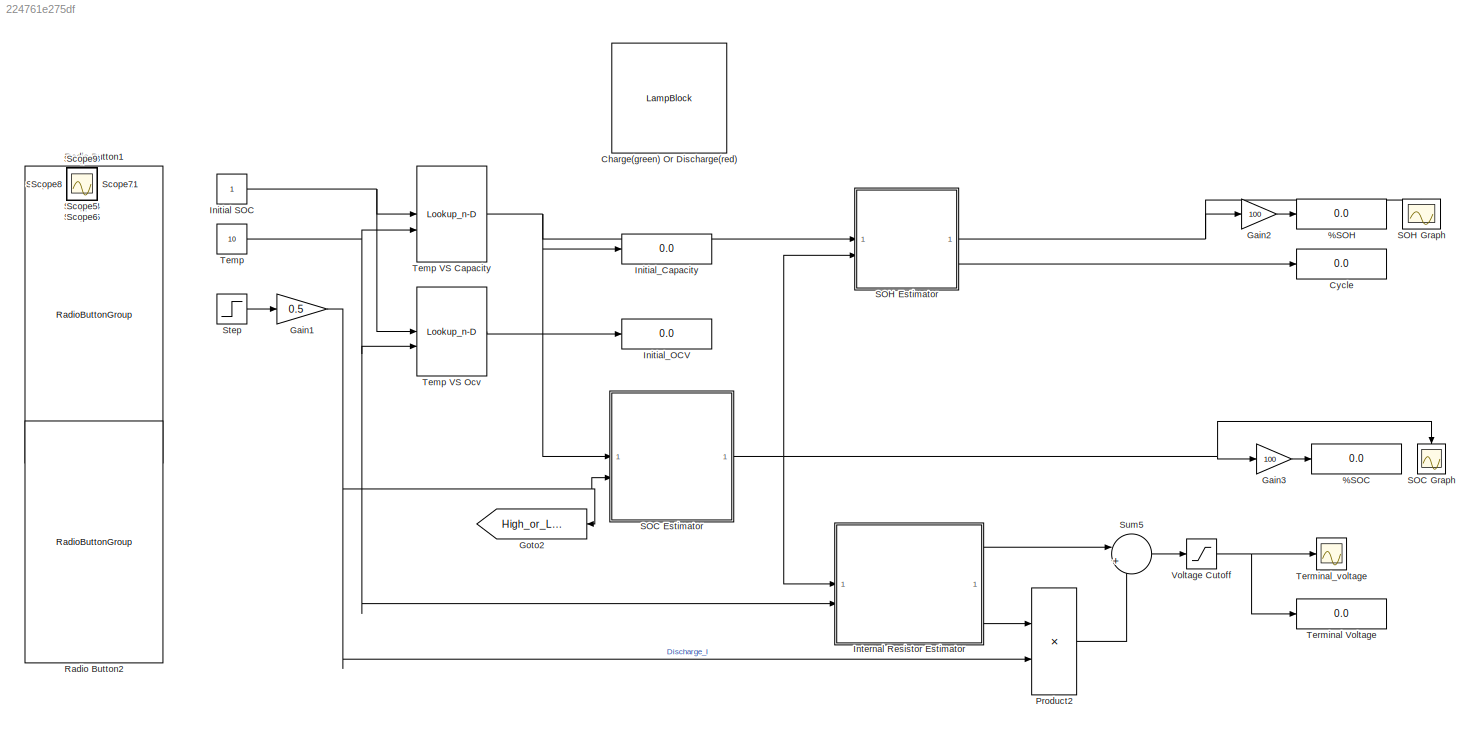
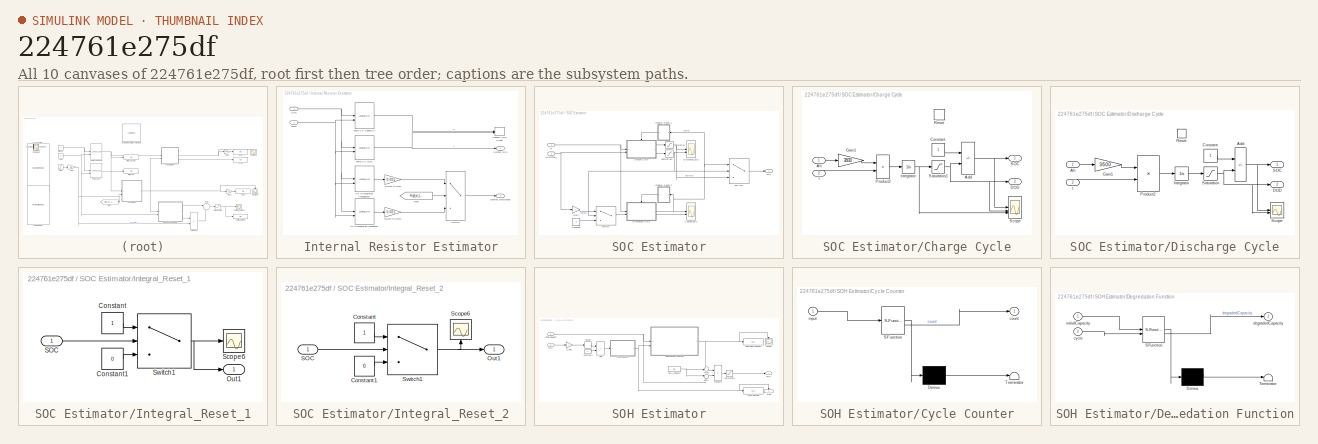
[diagram: thumbnail index - all 10 canvases of the model, root first then tree order]
MODEL slx_224761e275df
KIND model
CONFIG AbsTol = auto
CONFIG EnableMultiTasking = off
CONFIG FixedStep = 1
CONFIG MaxStep = auto
CONFIG MinStep = auto
CONFIG RelTol = 1e-5
CONFIG SampleTimeConstraint = Unconstrained
CONFIG SolverName = VariableStepAuto
CONFIG StartTime = 0.0
CONFIG StopTime = inf
BLOCK [Display] %SOC
  Decimation = 1
BLOCK [Display] %SOH
  Decimation = 1
BLOCK [LampBlock] Charge(green) Or Discharge(red)
  LabelPosition = Hide
BLOCK [Display] Cycle
  Decimation = 1
BLOCK [Gain] Gain1
  Gain = 0.5
BLOCK [Gain] Gain2
  Gain = 100
BLOCK [Gain] Gain3
  Gain = 100
BLOCK [Goto] Goto2
  GotoTag = High_or_Low_current
  NameLocation = top
  TagVisibility = global
BLOCK [Constant] Initial SOC
  SampleTime = 1
BLOCK [Display] Initial_Capacity
  Decimation = 1
BLOCK [Display] Initial_OCV
  Decimation = 1
BLOCK [SubSystem] Internal Resistor Estimator
BLOCK [Record] Internal Resistor Estimator/Capacity_Ocv Graph
  CompatibilityTag = XY
  FileSettingsInternal = {"entries":[{"content":{"excelSettings":{"content":{},"type":"Streamout.ExcelSettings"}},"type":"Streamout.FileSettingStorage","uuid":""}],"packageUris":["http:\/\/schema.mathworks.com\/mf0\/streamout_blocks\/R2020a"],"version":"1.0"}
  Layout = [1 1]
  SignalsInternal = {"entries":[{"content":{"signals":[{"content":{"blockPath":[],"dimensions":[1],"domain":"","lineColor":"#a2142f","plots":[1],"port":1,"signalID":7779,"signalName":"XY Graph:1"},"type":"RecordBlkView.Signal","uuid":""},{"content":{"blockPath":[],"dimensions":[1],"domain":"","lineColor":"#139fff","plots":[1],"port":2,"signalID":7782,"signalName":"XY Graph:2"},"type":"RecordBlkView.Signal","uuid":""}...<+146ch>
  VisualizationBindings = {"xyplotplugin":{"info":[{"series":[{"bindingParametersList":[{"parameter":"X-Axis","signalID":7779,"signalName":"XY Graph:1"},{"parameter":"Y-Axis","signalID":7782,"signalName":"XY Graph:2"}],"seriesID":9451}],"subplotID":1}]}}
BLOCK [Outport] Internal Resistor Estimator/Current_OCV
BLOCK [From] Internal Resistor Estimator/From
  GotoTag = High_or_Low_current
  TagVisibility = global
BLOCK [Lookup_n-D] Internal Resistor Estimator/HC-Discharging Impedance1
  BreakpointsForDimension1 = [0;0.05;0.1;0.2;0.3;0.4;0.5;0.6;0.7;0.8;0.9;1]
  BreakpointsForDimension2 = [-30;-20;-10;0;10;25;45;55]
  InputPortMap = u0,u1
  InternalRulePriority = Speed
  RndMeth = Simplest
  Table = [75.5 51.2 28.1 17.5 14.1 8.88 5.49 4.87;75.5 51.2 28.1 17.5 14.1 8.88 5.49 4.87;69.9 45.3 24.1 14.2 10.3 7.3 3.2 4.2;61.2 35.8 17.8 10 6.1 4.3 3.5 2.3;47.7 26.6 13.8 8.1 5.1 4 3 2;37.1 23.5 11.7 7.4 4.8 3.7 3 1.9;30.5 21.4 10.6 7.1 4.7 3.9 2.2 1.7;27.5 18.3 10 7 4.7 3.9 2.1 1.7;24.8 16.7 9.7 6.9 4.7 4 2.2 1.9;22.9 16.1 9.5 6.9 4.8 4 2.3 1.9;22.1 15.8 9.5 7 4.9 4.1 2.3 1.9;22.4 16.7 9.7 7.3 5.1 3....<+10ch>
BLOCK [Outport] Internal Resistor Estimator/Internal_Resistance
  Port = 2
BLOCK [Lookup_n-D] Internal Resistor Estimator/LC-Discharging Impedance
  BreakpointsForDimension1 = [0;0.05;0.1;0.15;0.2;0.25;0.3;0.35;0.4;0.45;0.5;0.55;0.6;0.65;0.7;0.75;0.8;0.85;0.9;0.95;1]
  BreakpointsForDimension2 = [-30;-20;-10;0;10;25;45]
  InputPortMap = u0,u1
  InternalRulePriority = Speed
  RndMeth = Simplest
  Table = [124.53 60.78 33.59 13.67 8.39 4.69 3.13;124.53 60.78 33.59 13.67 8.39 4.69 3.13;122.03 59.69 32.5 12.61 7.28 3.91 2.34;119.84 58.59 31.88 11.97 6.78 3.44 2.03;119.38 57.5 30.94 11.54 6.51 3.28 1.87;118.59 56.41 30.31 11.27 6.32 3.28 1.88;117.97 55.78 29.84 11.17 6.2 2.97 1.87;117.34 55.63 29.53 11.05 6.13 3.13 1.88;117.03 55.63 29.38 11.08 6.22 3.12 1.72;116.88 55.62 29.53 11.22 6.3 3.28 1.88;116...<+427ch>
BLOCK [Inport] Internal Resistor Estimator/SOC
BLOCK [Switch] Internal Resistor Estimator/Switch
  Criteria = u2 > Threshold
  InputSameDT = off
  SaturateOnIntegerOverflow = off
  Threshold = 32
BLOCK [Inport] Internal Resistor Estimator/Temp
  Port = 2
BLOCK [Lookup_n-D] Internal Resistor Estimator/Temp VS Capacity1
  BreakpointsForDimension1 = [0.05;0.1;0.2;0.3;0.4;0.5;0.6;0.7;0.8;0.9;1]
  BreakpointsForDimension2 = [-30;-20;-10;0;10;25;45;55]
  InputPortMap = u0,u1
  InternalRulePriority = Speed
  RndMeth = Simplest
  Table = [0.9696 1.142325 1.332525 1.44755 1.561325 1.666425 1.751575 1.7742;1.9392 2.28465 2.66505 2.8951 3.12265 3.33285 3.50315 3.5484;3.8784 4.5693 5.3301 5.7902 6.2453 6.6657 7.0063 7.0968;5.8176 6.85395 7.99515 8.6853 9.36795 9.99855 10.50945 10.6452;7.7568 9.1386 10.6602 11.5804 12.4906 13.3314 14.0126 14.1936;9.696 11.42325 13.32525 14.4755 15.61325 16.66425 17.51575 17.742;11.6352 13.7079 15.9903 ...<+303ch>
BLOCK [Lookup_n-D] Internal Resistor Estimator/Temp VS Ocv1
  BreakpointsForDimension1 = [0;0.05;0.1;0.2;0.3;0.4;0.5;0.6;0.7;0.8;0.9;1]
  BreakpointsForDimension2 = [-30;-20;-10;0;10;25;45;55]
  InputPortMap = u0,u1
  InternalRulePriority = Speed
  RndMeth = Simplest
  Table = [2.7 2.7 2.7 2.7 2.7 2.7 2.7 2.7;3.631 3.597 3.574 3.559 3.523 3.473 3.473 3.425;3.635 3.61 3.588 3.581 3.558 3.516 3.516 3.462;3.669 3.647 3.625 3.617 3.608 3.589 3.589 3.547;3.713 3.69 3.663 3.651 3.641 3.632 3.632 3.619;3.768 3.749 3.715 3.694 3.678 3.665 3.665 3.655;3.831 3.821 3.788 3.764 3.743 3.72 3.72 3.702;3.898 3.901 3.878 3.862 3.85 3.831 3.831 3.806;3.971 3.984 3.973 3.968 3.957 3.938 ...<+153ch>
BLOCK [Gain] Internal Resistor Estimator/mOhm to Ohm
  Gain = 0.001
BLOCK [Gain] Internal Resistor Estimator/mOhm to Ohm1
  Gain = 0.001
BLOCK [Product] Product2
BLOCK [RadioButtonGroup] Radio Button1
  ButtonGroupName = Temperature
  SelectedLabel = 10
BLOCK [RadioButtonGroup] Radio Button2
  ButtonGroupName = Current
  SelectedLabel = C/2
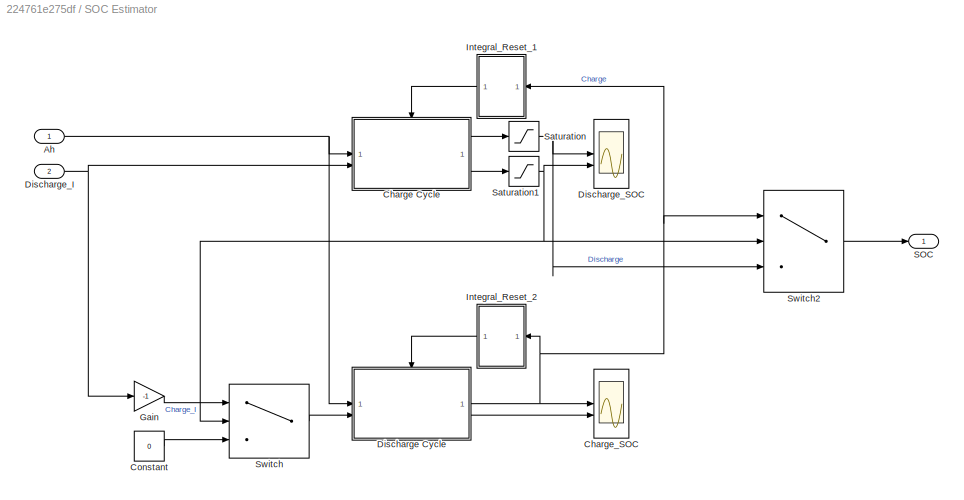
BLOCK [SubSystem] SOC Estimator
BLOCK [Inport] SOC Estimator/Ah
BLOCK [SubSystem] SOC Estimator/Charge Cycle
  TreatAsAtomicUnit = on
BLOCK [Sum] SOC Estimator/Charge Cycle/Add
  IconShape = rectangular
  Inputs = +-
BLOCK [Inport] SOC Estimator/Charge Cycle/Ah
  NameLocation = top
BLOCK [Constant] SOC Estimator/Charge Cycle/Constant
BLOCK [Outport] SOC Estimator/Charge Cycle/DOD
  Port = 2
BLOCK [Gain] SOC Estimator/Charge Cycle/Gain1
  Gain = 3600
BLOCK [Inport] SOC Estimator/Charge Cycle/I
  Port = 2
BLOCK [Integrator] SOC Estimator/Charge Cycle/Integrator
BLOCK [Product] SOC Estimator/Charge Cycle/Product2
  Inputs = /*
BLOCK [ResetPort] SOC Estimator/Charge Cycle/Reset
  DisableCoverage = on
BLOCK [Outport] SOC Estimator/Charge Cycle/SOC
BLOCK [Saturate] SOC Estimator/Charge Cycle/Saturation1
  LowerLimit = 0
  UpperLimit = 1
BLOCK [Scope] SOC Estimator/Charge Cycle/Scope
  Floating = off
  NumInputPorts = 3
  ScopeSpecificationString = Simulink.scopes.TimeScopeBlockCfg('CurrentConfiguration', extmgr.ConfigurationSet(extmgr.Configuration('Core','General UI',true),extmgr.Configuration('Core','Source UI',true),extmgr.Configuration('Sources','WiredSimulink',true,'DataLoggingVariableName','ScopeData1'),extmgr.Configuration('Visuals','Time Domain',true,'SerializedDisplays',{struct('MinYLimReal','-0.20625','MaxYLimReal','1.85625','YLab...<+1491ch>
BLOCK [Scope] SOC Estimator/Charge_SOC
  Floating = off
  NumInputPorts = 2
  ScopeSpecificationString = Simulink.scopes.TimeScopeBlockCfg('CurrentConfiguration', extmgr.ConfigurationSet(extmgr.Configuration('Core','General UI',true),extmgr.Configuration('Core','Source UI',true),extmgr.Configuration('Sources','WiredSimulink',true,'DataLoggingVariableName','ScopeData1'),extmgr.Configuration('Visuals','Time Domain',true,'PlotType','Line','SerializedDisplays',{struct('MinYLimReal','-0.125','MaxYLimReal'...<+1754ch>
BLOCK [Constant] SOC Estimator/Constant
  Value = 0
BLOCK [SubSystem] SOC Estimator/Discharge Cycle
  TreatAsAtomicUnit = on
BLOCK [Sum] SOC Estimator/Discharge Cycle/Add
  IconShape = rectangular
  Inputs = +-
BLOCK [Inport] SOC Estimator/Discharge Cycle/Ah
  NameLocation = top
BLOCK [Constant] SOC Estimator/Discharge Cycle/Constant
BLOCK [Outport] SOC Estimator/Discharge Cycle/DOD
  Port = 2
BLOCK [Gain] SOC Estimator/Discharge Cycle/Gain1
  Gain = 3600
BLOCK [Inport] SOC Estimator/Discharge Cycle/I
  NameLocation = top
  Port = 2
BLOCK [Integrator] SOC Estimator/Discharge Cycle/Integrator
  InitialCondition = 0.65
BLOCK [Product] SOC Estimator/Discharge Cycle/Product2
  Inputs = /*
BLOCK [ResetPort] SOC Estimator/Discharge Cycle/Reset
  DisableCoverage = on
BLOCK [Outport] SOC Estimator/Discharge Cycle/SOC
BLOCK [Saturate] SOC Estimator/Discharge Cycle/Saturation
  LowerLimit = 0
  UpperLimit = 1
BLOCK [Scope] SOC Estimator/Discharge Cycle/Scope
  Floating = off
  NumInputPorts = 2
  ScopeSpecificationString = Simulink.scopes.TimeScopeBlockCfg('CurrentConfiguration', extmgr.ConfigurationSet(extmgr.Configuration('Core','General UI',true),extmgr.Configuration('Core','Source UI',true),extmgr.Configuration('Sources','WiredSimulink',true,'DataLoggingVariableName','ScopeData1'),extmgr.Configuration('Visuals','Time Domain',true,'SerializedDisplays',{struct('MinYLimReal','-0.25','MaxYLimReal','2.25','YLabelReal...<+1432ch>
BLOCK [Inport] SOC Estimator/Discharge_I
  Port = 2
BLOCK [Scope] SOC Estimator/Discharge_SOC
  Floating = off
  NumInputPorts = 2
  ScopeSpecificationString = Simulink.scopes.TimeScopeBlockCfg('CurrentConfiguration', extmgr.ConfigurationSet(extmgr.Configuration('Core','General UI',true),extmgr.Configuration('Core','Source UI',true),extmgr.Configuration('Sources','WiredSimulink',true,'DataLoggingVariableName','ScopeData2'),extmgr.Configuration('Visuals','Time Domain',true,'PlotType','Line','SerializedDisplays',{struct('MinYLimReal','-0.125','MaxYLimReal'...<+1743ch>
BLOCK [Gain] SOC Estimator/Gain
  Gain = -1
BLOCK [SubSystem] SOC Estimator/Integral_Reset_1
  NameLocation = top
BLOCK [Constant] SOC Estimator/Integral_Reset_1/Constant
BLOCK [Constant] SOC Estimator/Integral_Reset_1/Constant1
  Value = 0
BLOCK [Outport] SOC Estimator/Integral_Reset_1/Out1
BLOCK [Inport] SOC Estimator/Integral_Reset_1/SOC
BLOCK [Scope] SOC Estimator/Integral_Reset_1/Scope6
  Floating = off
  NumInputPorts = 1
  ScopeSpecificationString = Simulink.scopes.TimeScopeBlockCfg('CurrentConfiguration', extmgr.ConfigurationSet(extmgr.Configuration('Core','General UI',true),extmgr.Configuration('Core','Source UI',true),extmgr.Configuration('Sources','WiredSimulink',true,'DataLoggingVariableName','ScopeData3'),extmgr.Configuration('Visuals','Time Domain',true,'SerializedDisplays',{struct('MinYLimReal','-1.00000','MaxYLimReal','1.00000','YLab...<+1529ch>
BLOCK [Switch] SOC Estimator/Integral_Reset_1/Switch1
  InputSameDT = off
  SaturateOnIntegerOverflow = off
  Threshold = 1
BLOCK [SubSystem] SOC Estimator/Integral_Reset_2
  NameLocation = top
BLOCK [Constant] SOC Estimator/Integral_Reset_2/Constant
BLOCK [Constant] SOC Estimator/Integral_Reset_2/Constant1
  Value = 0
BLOCK [Outport] SOC Estimator/Integral_Reset_2/Out1
BLOCK [Inport] SOC Estimator/Integral_Reset_2/SOC
BLOCK [Scope] SOC Estimator/Integral_Reset_2/Scope6
  Floating = off
  NameLocation = right
  NumInputPorts = 1
  ScopeSpecificationString = Simulink.scopes.TimeScopeBlockCfg('CurrentConfiguration', extmgr.ConfigurationSet(extmgr.Configuration('Core','General UI',true),extmgr.Configuration('Core','Source UI',true),extmgr.Configuration('Sources','WiredSimulink',true,'DataLoggingVariableName','ScopeData3'),extmgr.Configuration('Visuals','Time Domain',true,'SerializedDisplays',{struct('MinYLimReal','-1.00000','MaxYLimReal','1.00000','YLab...<+1410ch>
BLOCK [Switch] SOC Estimator/Integral_Reset_2/Switch1
  InputSameDT = off
  SaturateOnIntegerOverflow = off
  Threshold = 1
BLOCK [Outport] SOC Estimator/SOC
BLOCK [Saturate] SOC Estimator/Saturation
  LowerLimit = 0.35
  UpperLimit = 1
BLOCK [Saturate] SOC Estimator/Saturation1
  LowerLimit = 0
  UpperLimit = 0.65
BLOCK [Switch] SOC Estimator/Switch
  InputSameDT = off
  SaturateOnIntegerOverflow = off
  Threshold = 0.65
BLOCK [Switch] SOC Estimator/Switch2
  InputSameDT = off
  SaturateOnIntegerOverflow = off
  Threshold = 0.65
BLOCK [Scope] SOC Graph
  Floating = off
  NumInputPorts = 1
  ScopeSpecificationString = Simulink.scopes.TimeScopeBlockCfg('CurrentConfiguration', extmgr.ConfigurationSet(extmgr.Configuration('Core','General UI',true),extmgr.Configuration('Core','Source UI',true),extmgr.Configuration('Sources','WiredSimulink',true,'DataLoggingVariableName','ScopeData1'),extmgr.Configuration('Visuals','Time Domain',true,'SerializedDisplays',{struct('MinYLimReal','0.26875','MaxYLimReal','1.08125','YLabe...<+1428ch>
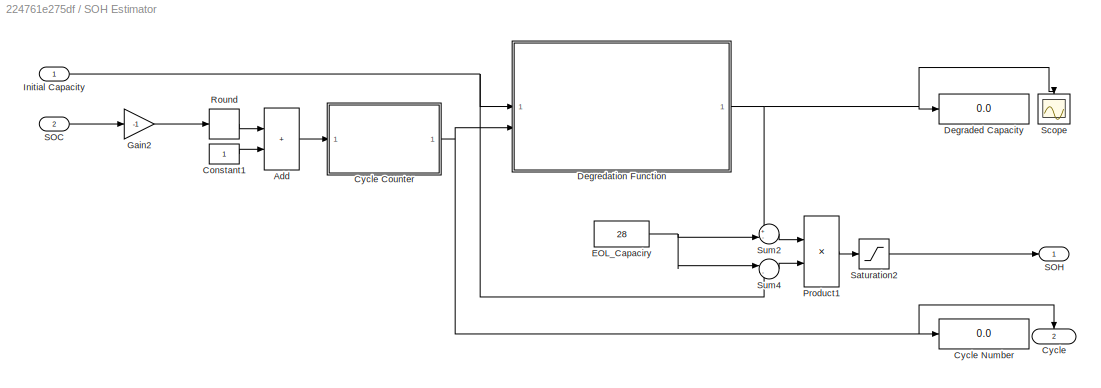
BLOCK [SubSystem] SOH Estimator
BLOCK [Sum] SOH Estimator/Add
  IconShape = rectangular
BLOCK [Constant] SOH Estimator/Constant1
BLOCK [Outport] SOH Estimator/Cycle
  Port = 2
BLOCK [SubSystem] SOH Estimator/Cycle Counter
  ErrorFcn = Stateflow.Translate.translate
  PermitHierarchicalResolution = ExplicitOnly
  SFBlockType = MATLAB Function
  TreatAsAtomicUnit = on
BLOCK [Demux] SOH Estimator/Cycle Counter/ Demux 
  Outputs = 1
BLOCK [S-Function] SOH Estimator/Cycle Counter/ SFunction 
  EnableBusSupport = on
  FunctionName = sf_sfun
  PortCounts = [1 2]
  SFcnIsStateOwnerBlock = off
  SFunctionDeploymentMode = off
  Tag = Stateflow S-Function 2
BLOCK [Terminator] SOH Estimator/Cycle Counter/ Terminator 
BLOCK [Outport] SOH Estimator/Cycle Counter/count
BLOCK [Inport] SOH Estimator/Cycle Counter/input
BLOCK [Display] SOH Estimator/Cycle Number
  Decimation = 1
BLOCK [Display] SOH Estimator/Degraded Capacity
  Decimation = 1
BLOCK [SubSystem] SOH Estimator/Degredation Function
  ErrorFcn = Stateflow.Translate.translate
  PermitHierarchicalResolution = ExplicitOnly
  SFBlockType = MATLAB Function
  TreatAsAtomicUnit = on
BLOCK [Demux] SOH Estimator/Degredation Function/ Demux 
  Outputs = 1
BLOCK [S-Function] SOH Estimator/Degredation Function/ SFunction 
  EnableBusSupport = on
  FunctionName = sf_sfun
  PortCounts = [2 2]
  SFcnIsStateOwnerBlock = off
  SFunctionDeploymentMode = off
  Tag = Stateflow S-Function 1
BLOCK [Terminator] SOH Estimator/Degredation Function/ Terminator 
BLOCK [Inport] SOH Estimator/Degredation Function/cycle
  Port = 2
BLOCK [Outport] SOH Estimator/Degredation Function/degradedCapacity
BLOCK [Inport] SOH Estimator/Degredation Function/initialCapacity
BLOCK [Constant] SOH Estimator/EOL_Capaciry
  Value = 28
BLOCK [Gain] SOH Estimator/Gain2
  Gain = -1
BLOCK [Inport] SOH Estimator/Initial Capacity
BLOCK [Product] SOH Estimator/Product1
  Inputs = */
BLOCK [Rounding] SOH Estimator/Round
  Operator = round
BLOCK [Inport] SOH Estimator/SOC
  Port = 2
BLOCK [Outport] SOH Estimator/SOH
BLOCK [Saturate] SOH Estimator/Saturation2
  LowerLimit = 0
  UpperLimit = 1
BLOCK [Scope] SOH Estimator/Scope
  Floating = off
  NameLocation = left
  NumInputPorts = 1
  ScopeSpecificationString = Simulink.scopes.TimeScopeBlockCfg('CurrentConfiguration', extmgr.ConfigurationSet(extmgr.Configuration('Core','General UI',true),extmgr.Configuration('Core','Source UI',true),extmgr.Configuration('Sources','WiredSimulink',true,'DataLoggingVariableName','ScopeData3'),extmgr.Configuration('Visuals','Time Domain',true),extmgr.Configuration('Tools','Plot Navigation',true),extmgr.Configuration('Tools',...<+40ch>
BLOCK [Sum] SOH Estimator/Sum2
  Inputs = +-|
BLOCK [Sum] SOH Estimator/Sum4
  Inputs = |-+
BLOCK [Scope] SOH Graph
  Floating = off
  NumInputPorts = 1
  ScopeSpecificationString = Simulink.scopes.TimeScopeBlockCfg('CurrentConfiguration', extmgr.ConfigurationSet(extmgr.Configuration('Core','General UI',true),extmgr.Configuration('Core','Source UI',true),extmgr.Configuration('Sources','WiredSimulink',true,'DataLoggingVariableName','ScopeData2'),extmgr.Configuration('Visuals','Time Domain',true,'SerializedDisplays',{struct('MinYLimReal','0.97238','MaxYLimReal','0.97896','YLabe...<+2059ch>
BLOCK [Scope] Scope
  Floating = off
  IOType = viewer
  NumInputPorts = 1
  ScopeSpecificationString = Simulink.scopes.TimeScopeBlockCfg('CurrentConfiguration', extmgr.ConfigurationSet(extmgr.Configuration('Core','General UI',true),extmgr.Configuration('Core','Source UI',true),extmgr.Configuration('Sources','WiredSimulink',true,'DataLoggingVariableName','ScopeData2'),extmgr.Configuration('Visuals','Time Domain',true,'SerializedDisplays',{struct('MinYLimReal','-0.125','MaxYLimReal','1.125','YLabelRe...<+1391ch>
BLOCK [Scope] Scope10
  Floating = off
  IOType = viewer
  NumInputPorts = 1
  ScopeSpecificationString = Simulink.scopes.TimeScopeBlockCfg('CurrentConfiguration', extmgr.ConfigurationSet(extmgr.Configuration('Core','General UI',true),extmgr.Configuration('Core','Source UI',true),extmgr.Configuration('Sources','WiredSimulink',true,'DataLoggingVariableName','ScopeData3'),extmgr.Configuration('Visuals','Time Domain',true,'SerializedDisplays',{struct('MinYLimReal','-0.10763','MaxYLimReal','0.01196','YLab...<+1384ch>
BLOCK [Scope] Scope11
  Floating = off
  IOType = viewer
  NumInputPorts = 1
  ScopeSpecificationString = Simulink.scopes.TimeScopeBlockCfg('CurrentConfiguration', extmgr.ConfigurationSet(extmgr.Configuration('Core','General UI',true),extmgr.Configuration('Core','Source UI',true),extmgr.Configuration('Sources','WiredSimulink',true,'DataLoggingVariableName','ScopeData2'),extmgr.Configuration('Visuals','Time Domain',true,'SerializedDisplays',{struct('MinYLimReal','-13.2','MaxYLimReal','13.2','YLabelReal...<+1366ch>
BLOCK [Scope] Scope12
  Floating = off
  IOType = viewer
  NumInputPorts = 1
  ScopeSpecificationString = Simulink.scopes.TimeScopeBlockCfg('CurrentConfiguration', extmgr.ConfigurationSet(extmgr.Configuration('Core','General UI',true),extmgr.Configuration('Core','Source UI',true),extmgr.Configuration('Sources','WiredSimulink',true,'DataLoggingVariableName','ScopeData3'),extmgr.Configuration('Visuals','Time Domain',true,'SerializedDisplays',{struct('MinYLimReal','3.58294','MaxYLimReal','4.34856','YLabe...<+1426ch>
BLOCK [Scope] Scope13
  Floating = off
  IOType = viewer
  NumInputPorts = 1
  ScopeSpecificationString = Simulink.scopes.TimeScopeBlockCfg('CurrentConfiguration', extmgr.ConfigurationSet(extmgr.Configuration('Core','General UI',true),extmgr.Configuration('Core','Source UI',true),extmgr.Configuration('Sources','WiredSimulink',true,'DataLoggingVariableName','ScopeData4'),extmgr.Configuration('Visuals','Time Domain',true,'SerializedDisplays',{struct('MinYLimReal','0.00465','MaxYLimReal','0.00515','YLabe...<+1393ch>
BLOCK [Scope] Scope14
  Floating = off
  IOType = viewer
  NumInputPorts = 1
  ScopeSpecificationString = Simulink.scopes.TimeScopeBlockCfg('CurrentConfiguration', extmgr.ConfigurationSet(extmgr.Configuration('Core','General UI',true),extmgr.Configuration('Core','Source UI',true),extmgr.Configuration('Sources','WiredSimulink',true,'DataLoggingVariableName','ScopeData4'),extmgr.Configuration('Visuals','Time Domain',true,'SerializedDisplays',{struct('MinYLimReal','-11.88','MaxYLimReal','1.32','YLabelRea...<+1370ch>
BLOCK [Scope] Scope15
  Floating = off
  IOType = viewer
  NumInputPorts = 1
  ScopeSpecificationString = Simulink.scopes.TimeScopeBlockCfg('CurrentConfiguration', extmgr.ConfigurationSet(extmgr.Configuration('Core','General UI',true),extmgr.Configuration('Core','Source UI',true),extmgr.Configuration('Sources','WiredSimulink',true,'DataLoggingVariableName','ScopeData1'),extmgr.Configuration('Visuals','Time Domain',true,'SerializedDisplays',{struct('MinYLimReal','-1.00000','MaxYLimReal','1.00000','YLab...<+1523ch>
BLOCK [Scope] Scope2
  Floating = off
  IOType = viewer
  NumInputPorts = 1
  ScopeSpecificationString = Simulink.scopes.TimeScopeBlockCfg('CurrentConfiguration', extmgr.ConfigurationSet(extmgr.Configuration('Core','General UI',true),extmgr.Configuration('Core','Source UI',true),extmgr.Configuration('Sources','WiredSimulink',true,'DataLoggingVariableName','ScopeData2'),extmgr.Configuration('Visuals','Time Domain',true,'SerializedDisplays',{struct('MinYLimReal','21.2265','MaxYLimReal','41.2265','YLabe...<+1433ch>
BLOCK [Scope] Scope3
  Floating = off
  IOType = viewer
  NumInputPorts = 1
  ScopeSpecificationString = Simulink.scopes.TimeScopeBlockCfg('CurrentConfiguration', extmgr.ConfigurationSet(extmgr.Configuration('Core','General UI',true),extmgr.Configuration('Core','Source UI',true),extmgr.Configuration('Sources','WiredSimulink',true,'DataLoggingVariableName','ScopeData3'),extmgr.Configuration('Visuals','Time Domain',true,'SerializedDisplays',{struct('MinYLimReal','3.272','MaxYLimReal','5.272','YLabelRea...<+1412ch>
BLOCK [Scope] Scope4
  Floating = off
  IOType = viewer
  NumInputPorts = 1
  ScopeSpecificationString = Simulink.scopes.TimeScopeBlockCfg('CurrentConfiguration', extmgr.ConfigurationSet(extmgr.Configuration('Core','General UI',true),extmgr.Configuration('Core','Source UI',true),extmgr.Configuration('Sources','WiredSimulink',true,'DataLoggingVariableName','ScopeData1'),extmgr.Configuration('Visuals','Time Domain',true,'SerializedDisplays',{struct('MinYLimReal','0.34901','MaxYLimReal','0.90456','YLabe...<+1376ch>
BLOCK [Scope] Scope5
  Floating = off
  IOType = viewer
  NumInputPorts = 1
  ScopeSpecificationString = Simulink.scopes.TimeScopeBlockCfg('CurrentConfiguration', extmgr.ConfigurationSet(extmgr.Configuration('Core','General UI',true),extmgr.Configuration('Core','Source UI',true),extmgr.Configuration('Sources','WiredSimulink',true,'DataLoggingVariableName','ScopeData1'),extmgr.Configuration('Visuals','Time Domain',true,'SerializedDisplays',{struct('MinYLimReal','-26.00000','MaxYLimReal','-6.00000','YL...<+1396ch>
BLOCK [Scope] Scope6
  Floating = off
  IOType = viewer
  NumInputPorts = 1
  ScopeSpecificationString = Simulink.scopes.TimeScopeBlockCfg('CurrentConfiguration', extmgr.ConfigurationSet(extmgr.Configuration('Core','General UI',true),extmgr.Configuration('Core','Source UI',true),extmgr.Configuration('Sources','WiredSimulink',true,'DataLoggingVariableName','ScopeData2'),extmgr.Configuration('Visuals','Time Domain',true,'SerializedDisplays',{struct('MinYLimReal','0.5952','MaxYLimReal','0.6592','YLabelR...<+1390ch>
BLOCK [Scope] Scope7
  Floating = off
  IOType = viewer
  NumInputPorts = 1
  ScopeSpecificationString = Simulink.scopes.TimeScopeBlockCfg('CurrentConfiguration', extmgr.ConfigurationSet(extmgr.Configuration('Core','General UI',true),extmgr.Configuration('Core','Source UI',true),extmgr.Configuration('Sources','WiredSimulink',true,'DataLoggingVariableName','ScopeData3'),extmgr.Configuration('Visuals','Time Domain',true,'SerializedDisplays',{struct('MinYLimReal','0.9406','MaxYLimReal','1.53458','YLabel...<+1378ch>
BLOCK [Scope] Scope8
  Floating = off
  IOType = viewer
  NumInputPorts = 1
  ScopeSpecificationString = Simulink.scopes.TimeScopeBlockCfg('CurrentConfiguration', extmgr.ConfigurationSet(extmgr.Configuration('Core','General UI',true),extmgr.Configuration('Core','Source UI',true),extmgr.Configuration('Sources','WiredSimulink',true,'DataLoggingVariableName','ScopeData4'),extmgr.Configuration('Visuals','Time Domain',true,'SerializedDisplays',{struct('MinYLimReal','-11.88','MaxYLimReal','1.32','YLabelRea...<+1370ch>
BLOCK [Scope] Scope9
  Floating = off
  IOType = viewer
  NumInputPorts = 1
  ScopeSpecificationString = Simulink.scopes.TimeScopeBlockCfg('CurrentConfiguration', extmgr.ConfigurationSet(extmgr.Configuration('Core','General UI',true),extmgr.Configuration('Core','Source UI',true),extmgr.Configuration('Sources','WiredSimulink',true,'DataLoggingVariableName','ScopeData3'),extmgr.Configuration('Visuals','Time Domain',true,'SerializedDisplays',{struct('MinYLimReal','-112.00000','MaxYLimReal','48.00000','Y...<+1396ch>
BLOCK [Step] Step
  After = 32
  Before = 32
  SampleTime = 0
BLOCK [Sum] Sum5
  Inputs = |+-
BLOCK [Constant] Temp
  Value = 10
BLOCK [Lookup_n-D] Temp VS Capacity
  BreakpointsForDimension1 = [0.05;0.1;0.2;0.3;0.4;0.5;0.6;0.7;0.8;0.9;1]
  BreakpointsForDimension2 = [-30;-20;-10;0;10;25;45;55]
  InputPortMap = u0,u1
  InternalRulePriority = Speed
  RndMeth = Simplest
  Table = [0.9696 1.142325 1.332525 1.44755 1.561325 1.666425 1.751575 1.7742;1.9392 2.28465 2.66505 2.8951 3.12265 3.33285 3.50315 3.5484;3.8784 4.5693 5.3301 5.7902 6.2453 6.6657 7.0063 7.0968;5.8176 6.85395 7.99515 8.6853 9.36795 9.99855 10.50945 10.6452;7.7568 9.1386 10.6602 11.5804 12.4906 13.3314 14.0126 14.1936;9.696 11.42325 13.32525 14.4755 15.61325 16.66425 17.51575 17.742;11.6352 13.7079 15.9903 ...<+303ch>
BLOCK [Lookup_n-D] Temp VS Ocv
  BreakpointsForDimension1 = [0.05;0.1;0.2;0.3;0.4;0.5;0.6;0.7;0.8;0.9;1]
  BreakpointsForDimension2 = [-30;-20;-10;0;10;25;45;55]
  InputPortMap = u0,u1
  InternalRulePriority = Speed
  RndMeth = Simplest
  Table = [3.631 3.597 3.574 3.559 3.523 3.473 3.473 3.425;3.635 3.61 3.588 3.581 3.558 3.516 3.516 3.462;3.669 3.647 3.625 3.617 3.608 3.589 3.589 3.547;3.713 3.69 3.663 3.651 3.641 3.632 3.632 3.619;3.768 3.749 3.715 3.694 3.678 3.665 3.665 3.655;3.831 3.821 3.788 3.764 3.743 3.72 3.72 3.702;3.898 3.901 3.878 3.862 3.85 3.831 3.831 3.806;3.971 3.984 3.973 3.968 3.957 3.938 3.938 3.917;4.048 4.071 4.069 4....<+121ch>
BLOCK [Display] Terminal Voltage
  Decimation = 1
BLOCK [Scope] Terminal_voltage
  Floating = off
  NumInputPorts = 1
  ScopeSpecificationString = Simulink.scopes.TimeScopeBlockCfg('CurrentConfiguration', extmgr.ConfigurationSet(extmgr.Configuration('Core','General UI',true),extmgr.Configuration('Core','Source UI',true),extmgr.Configuration('Sources','WiredSimulink',true,'DataLoggingVariableName','ScopeData2'),extmgr.Configuration('Visuals','Time Domain',true,'SerializedDisplays',{struct('MinYLimReal','3.49072','MaxYLimReal','4.19774','YLabe...<+1569ch>
BLOCK [Saturate] Voltage Cutoff
  LowerLimit = 2.7
  UpperLimit = 4.3
NET Gain1:1 -> Goto2:1, Product2:2, SOC Estimator:2
LINE Gain2:1 -> %SOH:1
LINE Gain3:1 -> %SOC:1
NET Initial SOC:1 -> Temp VS Capacity:1, Temp VS Ocv:1
LINE Internal Resistor Estimator/From:1 -> Internal Resistor Estimator/Switch:2
LINE Internal Resistor Estimator/HC-Discharging Impedance1:1 -> Internal Resistor Estimator/mOhm to Ohm:1
LINE Internal Resistor Estimator/LC-Discharging Impedance:1 -> Internal Resistor Estimator/mOhm to Ohm1:1
NET Internal Resistor Estimator/SOC:1 -> Internal Resistor Estimator/HC-Discharging Impedance1:1, Internal Resistor Estimator/LC-Discharging Impedance:1, Internal Resistor Estimator/Temp VS Capacity1:1, Internal Resistor Estimator/Temp VS Ocv1:1
LINE Internal Resistor Estimator/Switch:1 -> Internal Resistor Estimator/Internal_Resistance:1
LINE Internal Resistor Estimator/Temp VS Capacity1:1 -> Internal Resistor Estimator/Capacity_Ocv Graph:1
NET Internal Resistor Estimator/Temp VS Ocv1:1 -> Internal Resistor Estimator/Capacity_Ocv Graph:2, Internal Resistor Estimator/Current_OCV:1
NET Internal Resistor Estimator/Temp:1 -> Internal Resistor Estimator/HC-Discharging Impedance1:2, Internal Resistor Estimator/LC-Discharging Impedance:2, Internal Resistor Estimator/Temp VS Capacity1:2, Internal Resistor Estimator/Temp VS Ocv1:2
LINE Internal Resistor Estimator/mOhm to Ohm1:1 -> Internal Resistor Estimator/Switch:3
LINE Internal Resistor Estimator/mOhm to Ohm:1 -> Internal Resistor Estimator/Switch:1
LINE Internal Resistor Estimator:1 -> Sum5:1
LINE Internal Resistor Estimator:2 -> Product2:1
LINE Product2:1 -> Sum5:2
NET SOC Estimator/Ah:1 -> SOC Estimator/Charge Cycle:1, SOC Estimator/Discharge Cycle:1
NET SOC Estimator/Charge Cycle/Add:1 -> SOC Estimator/Charge Cycle/SOC:1, SOC Estimator/Charge Cycle/Scope:1
LINE SOC Estimator/Charge Cycle/Ah:1 -> SOC Estimator/Charge Cycle/Gain1:1
LINE SOC Estimator/Charge Cycle/Constant:1 -> SOC Estimator/Charge Cycle/Add:1
LINE SOC Estimator/Charge Cycle/Gain1:1 -> SOC Estimator/Charge Cycle/Product2:1
LINE SOC Estimator/Charge Cycle/I:1 -> SOC Estimator/Charge Cycle/Product2:2
NET SOC Estimator/Charge Cycle/Integrator:1 -> SOC Estimator/Charge Cycle/Saturation1:1, SOC Estimator/Charge Cycle/Scope:3
LINE SOC Estimator/Charge Cycle/Product2:1 -> SOC Estimator/Charge Cycle/Integrator:1
NET SOC Estimator/Charge Cycle/Saturation1:1 -> SOC Estimator/Charge Cycle/Add:2, SOC Estimator/Charge Cycle/DOD:1, SOC Estimator/Charge Cycle/Scope:2
LINE SOC Estimator/Charge Cycle:1 -> SOC Estimator/Saturation:1
LINE SOC Estimator/Charge Cycle:2 -> SOC Estimator/Saturation1:1
LINE SOC Estimator/Constant:1 -> SOC Estimator/Switch:3
NET SOC Estimator/Discharge Cycle/Add:1 -> SOC Estimator/Discharge Cycle/SOC:1, SOC Estimator/Discharge Cycle/Scope:1
LINE SOC Estimator/Discharge Cycle/Ah:1 -> SOC Estimator/Discharge Cycle/Gain1:1
LINE SOC Estimator/Discharge Cycle/Constant:1 -> SOC Estimator/Discharge Cycle/Add:1
LINE SOC Estimator/Discharge Cycle/Gain1:1 -> SOC Estimator/Discharge Cycle/Product2:1
LINE SOC Estimator/Discharge Cycle/I:1 -> SOC Estimator/Discharge Cycle/Product2:2
LINE SOC Estimator/Discharge Cycle/Integrator:1 -> SOC Estimator/Discharge Cycle/Saturation:1
LINE SOC Estimator/Discharge Cycle/Product2:1 -> SOC Estimator/Discharge Cycle/Integrator:1
NET SOC Estimator/Discharge Cycle/Saturation:1 -> SOC Estimator/Discharge Cycle/Add:2, SOC Estimator/Discharge Cycle/DOD:1, SOC Estimator/Discharge Cycle/Scope:2
NET SOC Estimator/Discharge Cycle:1 -> SOC Estimator/Charge_SOC:1, SOC Estimator/Integral_Reset_1:1, SOC Estimator/Integral_Reset_2:1, SOC Estimator/Switch2:1
LINE SOC Estimator/Discharge Cycle:2 -> SOC Estimator/Charge_SOC:2
NET SOC Estimator/Discharge_I:1 -> SOC Estimator/Charge Cycle:2, SOC Estimator/Gain:1
LINE SOC Estimator/Gain:1 -> SOC Estimator/Switch:1
LINE SOC Estimator/Integral_Reset_1/Constant1:1 -> SOC Estimator/Integral_Reset_1/Switch1:3
LINE SOC Estimator/Integral_Reset_1/Constant:1 -> SOC Estimator/Integral_Reset_1/Switch1:1
LINE SOC Estimator/Integral_Reset_1/SOC:1 -> SOC Estimator/Integral_Reset_1/Switch1:2
NET SOC Estimator/Integral_Reset_1/Switch1:1 -> SOC Estimator/Integral_Reset_1/Out1:1, SOC Estimator/Integral_Reset_1/Scope6:1
LINE SOC Estimator/Integral_Reset_1:1 -> SOC Estimator/Charge Cycle:Reset
LINE SOC Estimator/Integral_Reset_2/Constant1:1 -> SOC Estimator/Integral_Reset_2/Switch1:3
LINE SOC Estimator/Integral_Reset_2/Constant:1 -> SOC Estimator/Integral_Reset_2/Switch1:1
LINE SOC Estimator/Integral_Reset_2/SOC:1 -> SOC Estimator/Integral_Reset_2/Switch1:2
NET SOC Estimator/Integral_Reset_2/Switch1:1 -> SOC Estimator/Integral_Reset_2/Out1:1, SOC Estimator/Integral_Reset_2/Scope6:1
LINE SOC Estimator/Integral_Reset_2:1 -> SOC Estimator/Discharge Cycle:Reset
NET SOC Estimator/Saturation1:1 -> SOC Estimator/Discharge_SOC:2, SOC Estimator/Switch2:2, SOC Estimator/Switch:2
NET SOC Estimator/Saturation:1 -> SOC Estimator/Discharge_SOC:1, SOC Estimator/Switch2:3
LINE SOC Estimator/Switch2:1 -> SOC Estimator/SOC:1
LINE SOC Estimator/Switch:1 -> SOC Estimator/Discharge Cycle:2
NET SOC Estimator:1 -> Gain3:1, Internal Resistor Estimator:1, SOC Graph:1, SOH Estimator:2
LINE SOH Estimator/Add:1 -> SOH Estimator/Cycle Counter:1
LINE SOH Estimator/Constant1:1 -> SOH Estimator/Add:2
NET SOH Estimator/Cycle Counter:1 -> SOH Estimator/Cycle Number:1, SOH Estimator/Cycle:1, SOH Estimator/Degredation Function:2
NET SOH Estimator/Degredation Function:1 -> SOH Estimator/Degraded Capacity:1, SOH Estimator/Scope:1, SOH Estimator/Sum2:1
NET SOH Estimator/EOL_Capaciry:1 -> SOH Estimator/Sum2:2, SOH Estimator/Sum4:1
LINE SOH Estimator/Gain2:1 -> SOH Estimator/Round:1
NET SOH Estimator/Initial Capacity:1 -> SOH Estimator/Degredation Function:1, SOH Estimator/Sum4:2
LINE SOH Estimator/Product1:1 -> SOH Estimator/Saturation2:1
LINE SOH Estimator/Round:1 -> SOH Estimator/Add:1
LINE SOH Estimator/SOC:1 -> SOH Estimator/Gain2:1
LINE SOH Estimator/Saturation2:1 -> SOH Estimator/SOH:1
LINE SOH Estimator/Sum2:1 -> SOH Estimator/Product1:1
LINE SOH Estimator/Sum4:1 -> SOH Estimator/Product1:2
NET SOH Estimator:1 -> Gain2:1, SOH Graph:1
LINE SOH Estimator:2 -> Cycle:1
LINE Step:1 -> Gain1:1
LINE Sum5:1 -> Voltage Cutoff:1
NET Temp VS Capacity:1 -> Initial_Capacity:1, SOC Estimator:1, SOH Estimator:1
LINE Temp VS Ocv:1 -> Initial_OCV:1
NET Temp:1 -> Internal Resistor Estimator:2, Temp VS Capacity:2, Temp VS Ocv:2
NET Voltage Cutoff:1 -> Terminal Voltage:1, Terminal_voltage:1
note: NET lines group one-source signal fan-out (src -> all destinations, sorted); 1:1 wires keep LINE
CHART SOH Estimator/Degredation Function states=1 transitions=1
  STATE_LABEL 'eML_blk_kernel()'
  STATE_LABEL 'SCRIPT:\nfunction degradedCapacity = capacity_fade(initialCapacity, cycle)\n\n    % Constants\n    degradationRate = 0.001;  % Capacity degradation rate per hour\n     \n    % Capacity fade model (linear degradation)\n    degradedCapacity = initialCapacity - degradationRate * cycle;\n\nend\n'
CHART SOH Estimator/Cycle Counter states=1 transitions=1
  STATE_LABEL 'eML_blk_kernel()'
  STATE_LABEL 'SCRIPT:\nfunction count = countOnRisingEdge(input)\n    persistent prevInput;\n    persistent totalCount;\n    \n    if isempty(prevInput)\n        prevInput = 0;\n    end\n    \n    if isempty(totalCount)\n        totalCount = 0;\n    end\n    \n    % Detect rising edge\n    if input == 1 && prevInput == 0\n        totalCount = totalCount + 1;\n    end\n    \n    % Save the current input for the next iteration\n   ...<+82ch>'
CHART  states=0 transitions=0
CHART  states=0 transitions=0
